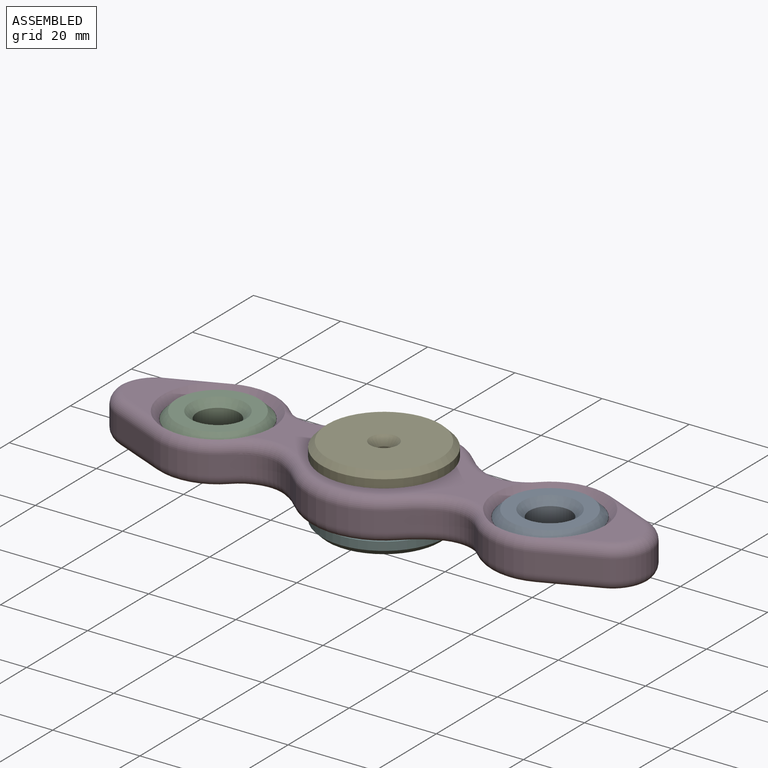
[diagram: assembled view]
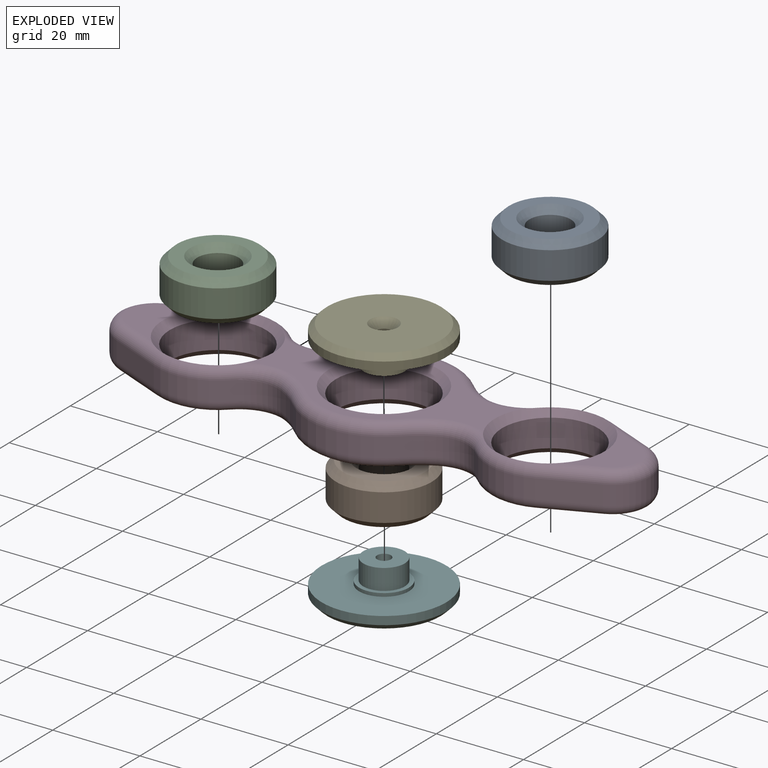
[diagram: exploded view]
GUIDED TOUR — MATED ASSEMBLY (Onshape document 589d855add79ff0fc411a54e, AutoMate assembly 589d855add79ff0fc411a54e_7f2bdc843beb71266bcebc4b_14e2ad150470167768cb55d5_default)

This assembly has 6 components, labeled P0..P5 below (a component is one placed occurrence of a part; the same part can appear more than once), held together by 5 mates. A mate is a constraint between two components; its type names the relative motion it leaves free:
  REVOLUTE — leaves rotation about the listed axis free (a hinge).
Axis/direction vectors are unit vectors and 'through' points are millimeter coordinates, both in the assembly's world frame.

MATES
  1. REVOLUTE "Revolute 2": P3 <-> P1, axis (0.000, 0.000, 1.000) through (0.00, 0.00, 9.53) mm
  2. REVOLUTE "Revolute 4": P4 <-> P1, axis (0.000, 0.000, -1.000) through (0.00, 0.00, 4.76) mm
  3. REVOLUTE "Revolute 1": P3 <-> P2, axis (0.000, 0.000, 1.000) through (-38.10, 0.00, 9.53) mm
  4. REVOLUTE "Revolute 3": P0 <-> P3, axis (0.000, 0.000, 1.000) through (38.10, 0.00, 9.53) mm
  5. REVOLUTE "Revolute 5": P5 <-> P1, axis (0.000, 0.000, 1.000) through (0.00, 0.00, 4.76) mm

ASSEMBLY ORDER
  1. P1 — the base component [order heuristic]
  2. P3 [order heuristic]
  3. P4 [order heuristic]
  4. P5 [order heuristic]
  5. P0 [order heuristic]
  6. P2 [order heuristic]
Order-tag legend:
  [order heuristic] — this assembly is geometrically interlocked (no collision-free removal order exists), so components are listed in mate-graph order; insertion feasibility is not verified.

Of the 6 components, 4 carry the full construction recipe — the FeatureScript program that regenerates the part's solid from scratch; the rest are supplied as boundary geometry only.
Each toured component is shown spotlighted twice — in the assembled view, then in the exploded view, where a leader line traces a displaced component back to its assembled socket (saturated green if recipe-attached, orange if geometry-only; every other component desaturated gray) — followed by its recipe or geometry summary and the mates that hold it.
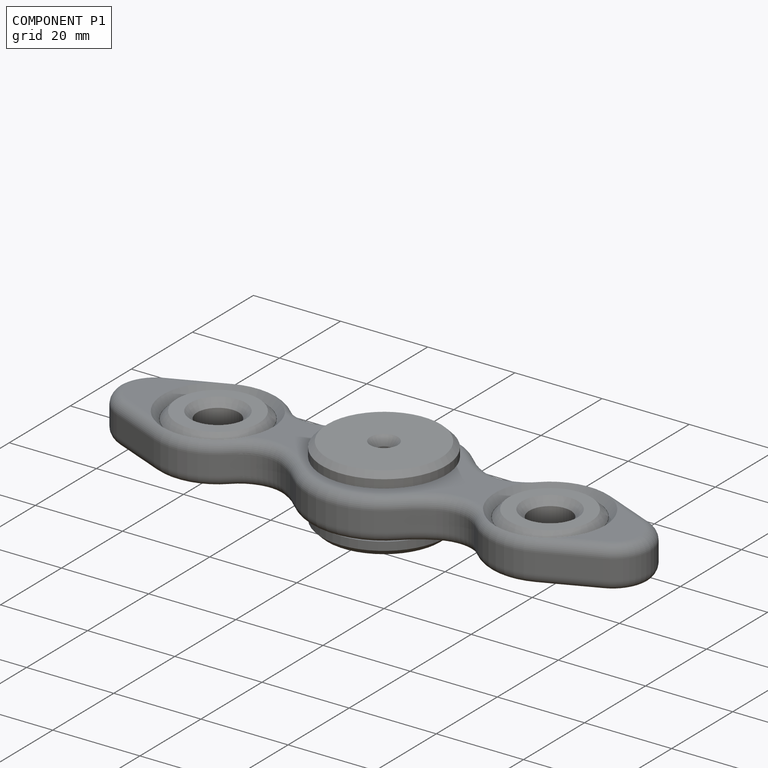
[diagram: component P1 — assembled]
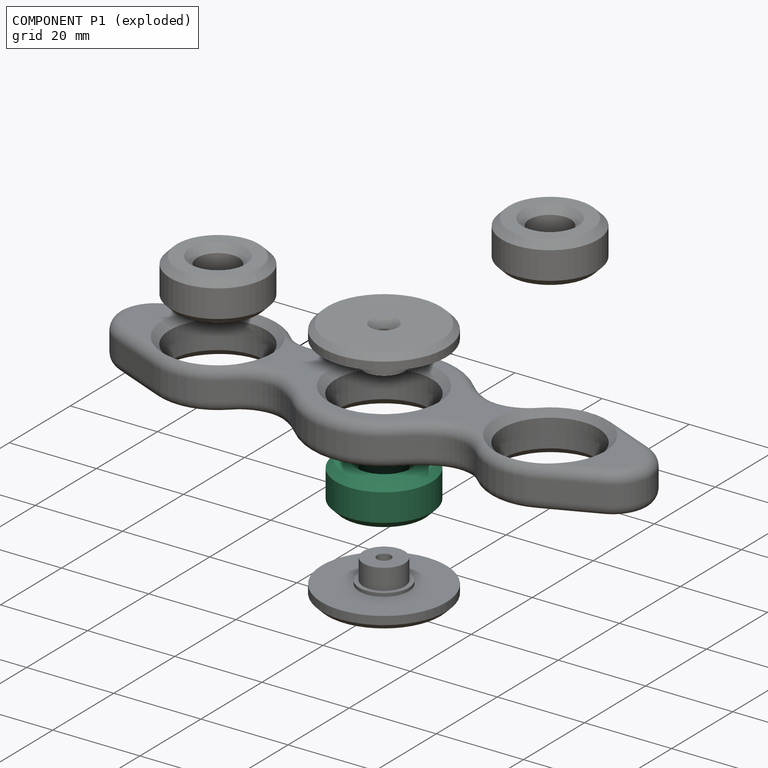
[diagram: component P1 — exploded]
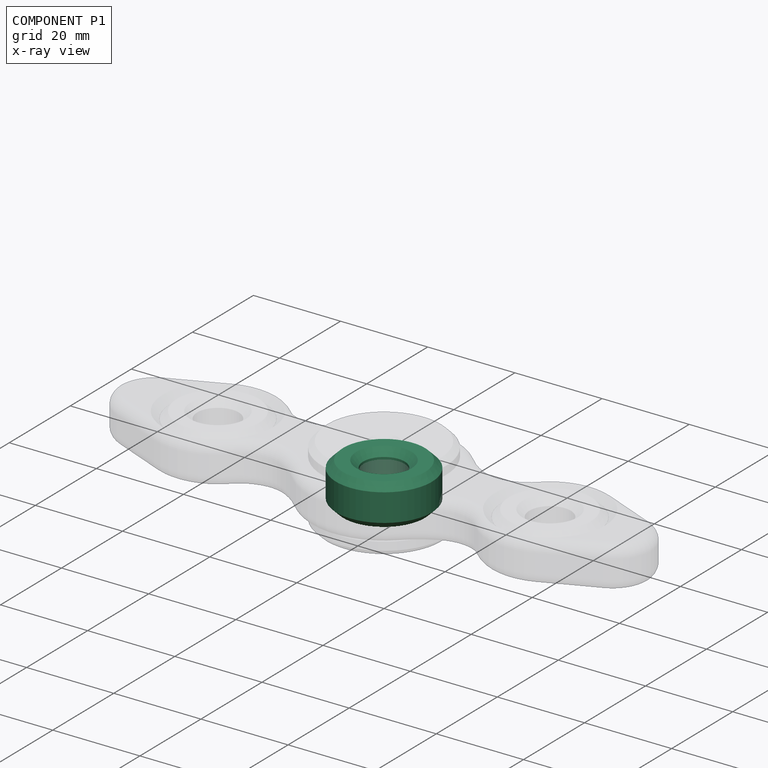
[diagram: component P1 — x-ray view]
COMPONENT P1 — same part as P0 (CADFS 00519273); its construction recipe is shown at P0.
Held by: REVOLUTE mate "Revolute 2" to P3; REVOLUTE mate "Revolute 4" to P4; REVOLUTE mate "Revolute 5" to P5.
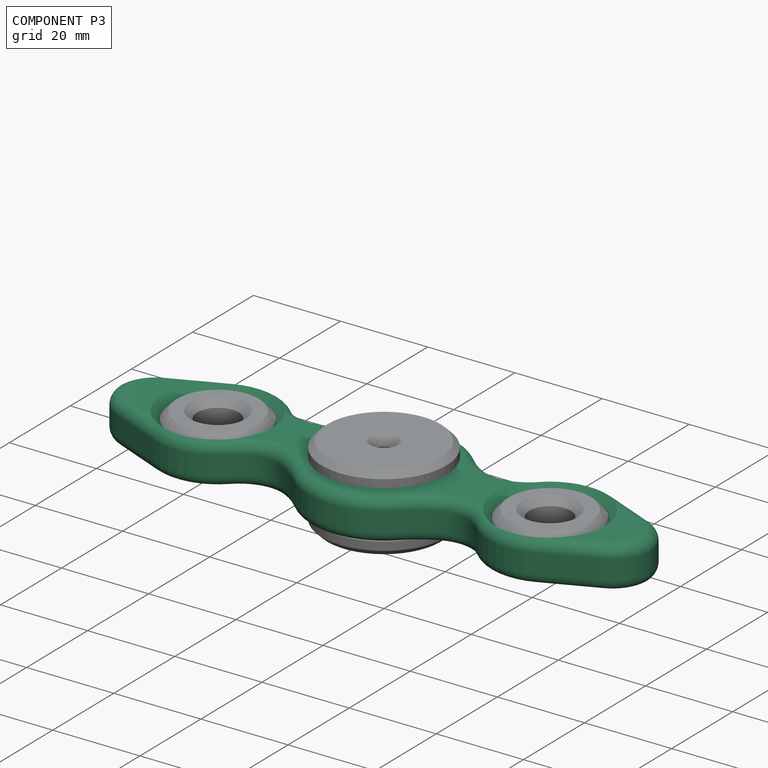
[diagram: component P3 — assembled]
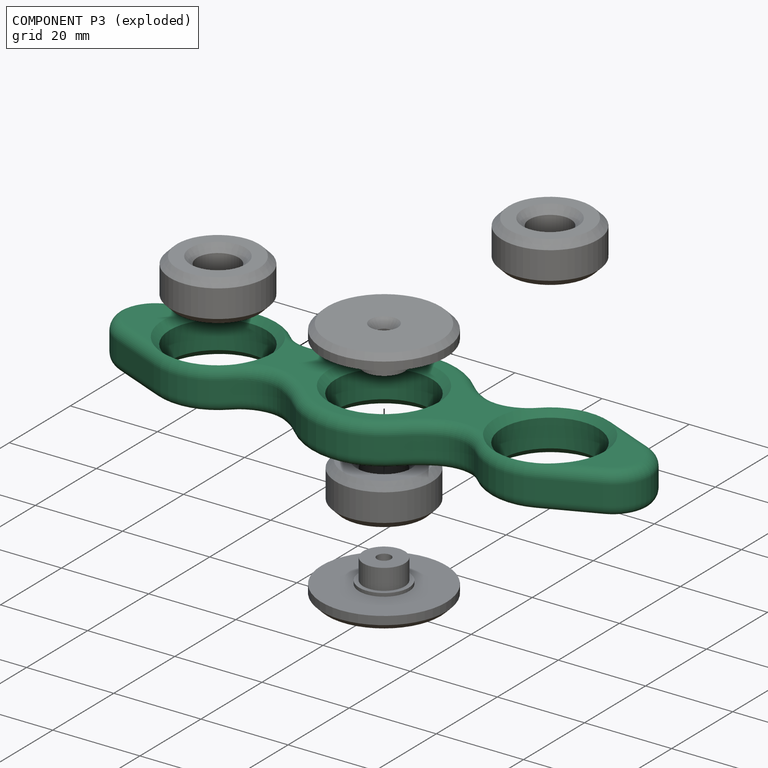
[diagram: component P3 — exploded]
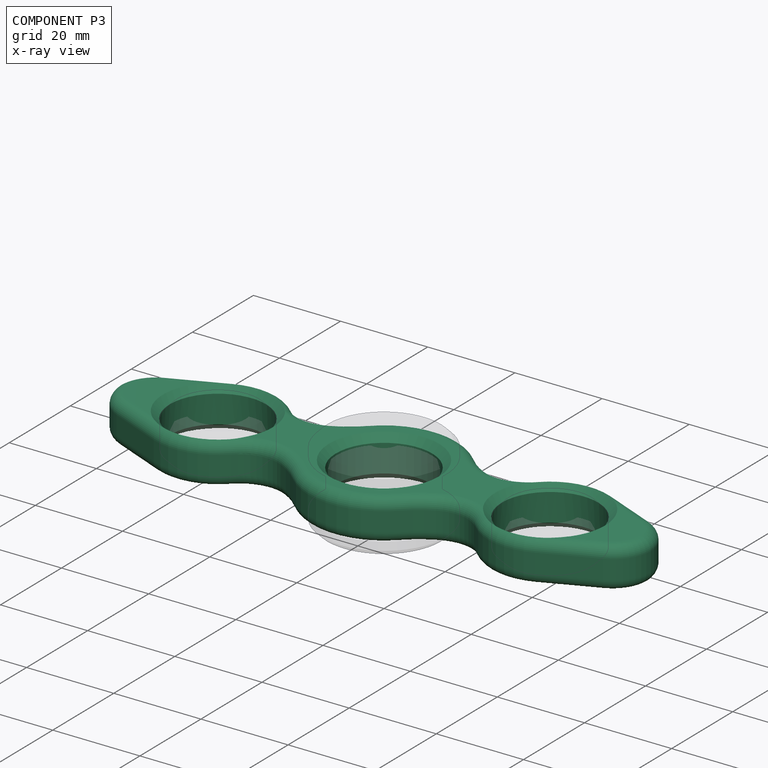
[diagram: component P3 — x-ray view]
COMPONENT P3 — recipe-attached (CADFS 00531265, mesh-verified: the recipe's output STEP matches this component's geometry to below the mesh-comparison resolution (tessellation chordal tolerance ~0.191 mm)).
Held by: REVOLUTE mate "Revolute 2" to P1; REVOLUTE mate "Revolute 1" to P2; REVOLUTE mate "Revolute 3" to P0.
Construction recipe (FeatureScript — the CAD program that rebuilds this solid; sketch coordinates are in the units given by the * unit suffixes, e.g. mm):

FeatureScript 1511;
import(path : "onshape/std/geometry.fs", version : "1511.0");
import(path : "onshape/std/common.fs", version : "1511.0");
const mm = millimeter;
const VERTEX = EntityType.VERTEX;
const EDGE = EntityType.EDGE;
const FACE = EntityType.FACE;
const BODY = EntityType.BODY;
function v(x, y){return vector(x, y);}
function OD(order){return orderDisambiguation(order);}
function OSD(set){return originalSetDisambiguation(set);}
function TD(topology){return topologyDisambiguation(topology);}
function TDD(query){return trueDependencyDisambiguation(query);}
function sQuery(a, b, c) {return sketchEntityQuery(a, b, c);}

annotation { "Feature Type Name" : "Feature", "Feature Type Description" : "" }
export const myFeature = defineFeature(function(context is Context, id is Id, definition is map)
    precondition{}
    {
        {
            var Q0;
            Q0=qCreatedBy(makeId("Top.planeOp"),FACE);
            var sketch = newSketch(context, id + "F0", { "sketchPlane" : qUnion([Q0])});
            skArc(sketch, "E0", {"start": v(0, 11.05) * mm, "mid": v(-7.81, 7.81) * mm, "end": v(-11.05, 0) * mm});
            skArc(sketch, "E1", {"start": v(-27.05, 0) * mm, "mid": v(-38.1, 11.05) * mm, "end": v(-49.15, 0) * mm});
            skArc(sketch, "E2", {"start": v(0, 17.4) * mm, "mid": v(-6.66, 16.07) * mm, "end": v(-12.3, 12.3) * mm});
            skArc(sketch, "E3", {"start": v(-28.04, 10.06) * mm, "mid": v(-35.39, 13.96) * mm, "end": v(-43.66, 13.1) * mm});
            skLineSegment(sketch, "E4", {"start": v(-43.66, 13.1) * mm, "end": v(-55.8, 7.94) * mm});
            skArc(sketch, "E5", {"start": v(-55.8, 7.94) * mm, "mid": v(-59.67, 4.77) * mm, "end": v(-61.2, 0) * mm});
            skPoint(sketch, "E6", {"position": v(0, 17.4) * mm});
            skArc(sketch, "E7", {"start": v(-17.9, 8.33) * mm, "mid": v(-14.94, 10.08) * mm, "end": v(-12.3, 12.3) * mm});
            skArc(sketch, "E8", {"start": v(-28.04, 10.06) * mm, "mid": v(-23.25, 7.58) * mm, "end": v(-17.9, 8.33) * mm});
            skLineSegment(sketch, "E9", {"start": v(0, 0) * mm, "end": v(-12.3, 12.3) * mm, "construction": true});
            skLineSegment(sketch, "E10", {"start": v(-38.1, 0) * mm, "end": v(-28.04, 10.06) * mm, "construction": true});
            skLineSegment(sketch, "E11", {"start": v(0, 17.4) * mm, "end": v(0, 0) * mm, "construction": true});
            skLineSegment(sketch, "E12", {"start": v(0, 0) * mm, "end": v(-61.2, 0) * mm, "construction": true});
            skPoint(sketch, "E13.center.orphan", {"position": v(38.1, 0) * mm});
            skPoint(sketch, "E14.end.orphan", {"position": v(-43.66, -13.1) * mm});
            skPoint(sketch, "E15.orphan", {"position": v(-55.8, -8.43) * mm});
            skArc(sketch, "E16.trimOffspring", {"start": v(-52.32, 0) * mm, "mid": v(-52.32, -0.12) * mm, "end": v(-52.32, -0.24) * mm});
            skArc(sketch, "E17.MirrorCS", {"start": v(-17.9, -8.33) * mm, "mid": v(-14.94, -10.08) * mm, "end": v(-12.3, -12.3) * mm});
            skArc(sketch, "E18.MirrorCS", {"start": v(-52.32, 0) * mm, "mid": v(-52.32, 0.12) * mm, "end": v(-52.32, 0.24) * mm});
            skLineSegment(sketch, "E19.MirrorCS", {"start": v(-43.66, -13.1) * mm, "end": v(-55.8, -7.94) * mm});
            skArc(sketch, "E20.MirrorCS", {"start": v(-55.8, -7.94) * mm, "mid": v(-59.67, -4.77) * mm, "end": v(-61.2, 0) * mm});
            skArc(sketch, "E21.MirrorCS", {"start": v(-28.04, -10.06) * mm, "mid": v(-23.25, -7.58) * mm, "end": v(-17.9, -8.33) * mm});
            skPoint(sketch, "E22.MirrorP", {"position": v(0, -17.4) * mm});
            skLineSegment(sketch, "E23.MirrorCS", {"start": v(0, 0) * mm, "end": v(-12.3, -12.3) * mm, "construction": true});
            skLineSegment(sketch, "E24.MirrorCS", {"start": v(0, -17.4) * mm, "end": v(0, 0) * mm, "construction": true});
            skArc(sketch, "E25.MirrorCS", {"start": v(-28.04, -10.06) * mm, "mid": v(-35.39, -13.96) * mm, "end": v(-43.66, -13.1) * mm});
            skArc(sketch, "E26.MirrorCS", {"start": v(-27.05, 0) * mm, "mid": v(-38.1, -11.05) * mm, "end": v(-49.15, 0) * mm});
            skArc(sketch, "E27.MirrorCS", {"start": v(0, -11.05) * mm, "mid": v(-7.81, -7.81) * mm, "end": v(-11.05, 0) * mm});
            skArc(sketch, "E28.MirrorCS", {"start": v(0, -17.4) * mm, "mid": v(-6.66, -16.07) * mm, "end": v(-12.3, -12.3) * mm});
            skLineSegment(sketch, "E29.MirrorCS", {"start": v(-38.1, 0) * mm, "end": v(-28.04, -10.06) * mm, "construction": true});
            skPoint(sketch, "E30.MirrorP", {"position": v(-55.8, 8.43) * mm});
            skArc(sketch, "E31.MirrorCS", {"start": v(52.32, 0) * mm, "mid": v(52.32, -0.12) * mm, "end": v(52.32, -0.24) * mm});
            skArc(sketch, "E32.MirrorCS", {"start": v(52.32, 0) * mm, "mid": v(52.32, 0.12) * mm, "end": v(52.32, 0.24) * mm});
            skArc(sketch, "E33.MirrorCS", {"start": v(17.9, 8.33) * mm, "mid": v(14.94, 10.08) * mm, "end": v(12.3, 12.3) * mm});
            skArc(sketch, "E34.MirrorCS", {"start": v(17.9, -8.33) * mm, "mid": v(14.94, -10.08) * mm, "end": v(12.3, -12.3) * mm});
            skPoint(sketch, "E35.MirrorP", {"position": v(55.8, 8.43) * mm});
            skArc(sketch, "E36.MirrorCS", {"start": v(55.8, -7.94) * mm, "mid": v(59.67, -4.77) * mm, "end": v(61.2, 0) * mm});
            skLineSegment(sketch, "E37.MirrorCS", {"start": v(0, 0) * mm, "end": v(12.3, -12.3) * mm, "construction": true});
            skPoint(sketch, "E38.MirrorP", {"position": v(43.66, -13.1) * mm});
            skArc(sketch, "E39.MirrorCS", {"start": v(28.04, -10.06) * mm, "mid": v(35.39, -13.96) * mm, "end": v(43.66, -13.1) * mm});
            skArc(sketch, "E40.MirrorCS", {"start": v(0, -11.05) * mm, "mid": v(7.81, -7.81) * mm, "end": v(11.05, 0) * mm});
            skArc(sketch, "E41.MirrorCS", {"start": v(0, -17.4) * mm, "mid": v(6.66, -16.07) * mm, "end": v(12.3, -12.3) * mm});
            skLineSegment(sketch, "E42.MirrorCS", {"start": v(0, 0) * mm, "end": v(61.2, 0) * mm, "construction": true});
            skLineSegment(sketch, "E43.MirrorCS", {"start": v(38.1, 0) * mm, "end": v(28.04, 10.06) * mm, "construction": true});
            skLineSegment(sketch, "E44.MirrorCS", {"start": v(0, 0) * mm, "end": v(12.3, 12.3) * mm, "construction": true});
            skArc(sketch, "E45.MirrorCS", {"start": v(28.04, 10.06) * mm, "mid": v(23.25, 7.58) * mm, "end": v(17.9, 8.33) * mm});
            skArc(sketch, "E46.MirrorCS", {"start": v(55.8, 7.94) * mm, "mid": v(59.67, 4.77) * mm, "end": v(61.2, 0) * mm});
            skLineSegment(sketch, "E47.MirrorCS", {"start": v(43.66, 13.1) * mm, "end": v(55.8, 7.94) * mm});
            skArc(sketch, "E48.MirrorCS", {"start": v(28.04, 10.06) * mm, "mid": v(35.39, 13.96) * mm, "end": v(43.66, 13.1) * mm});
            skArc(sketch, "E49.MirrorCS", {"start": v(0, 17.4) * mm, "mid": v(6.66, 16.07) * mm, "end": v(12.3, 12.3) * mm});
            skLineSegment(sketch, "E50.MirrorCS", {"start": v(38.1, 0) * mm, "end": v(28.04, -10.06) * mm, "construction": true});
            skArc(sketch, "E51.MirrorCS", {"start": v(27.05, 0) * mm, "mid": v(38.1, 11.05) * mm, "end": v(49.15, 0) * mm});
            skPoint(sketch, "E52.MirrorP", {"position": v(55.8, -8.43) * mm});
            skArc(sketch, "E53.MirrorCS", {"start": v(27.05, 0) * mm, "mid": v(38.1, -11.05) * mm, "end": v(49.15, 0) * mm});
            skArc(sketch, "E54.MirrorCS", {"start": v(28.04, -10.06) * mm, "mid": v(23.25, -7.58) * mm, "end": v(17.9, -8.33) * mm});
            skArc(sketch, "E55.MirrorCS", {"start": v(0, 11.05) * mm, "mid": v(7.81, 7.81) * mm, "end": v(11.05, 0) * mm});
            skLineSegment(sketch, "E56.MirrorCS", {"start": v(43.66, -13.1) * mm, "end": v(55.8, -7.94) * mm});
            skSolve(sketch);
        }
        {
            var Q0;
            Q0=makeQuery(id+"F0.imprint","IMPRINT",FACE,{"disambiguationData":[TD([[makeQuery(id+"F0.imprint","IMPRINT",EDGE,{"derivedFrom":sQuery(id+"F0.wireOp",EDGE,"E0")}),-1.0]])]});
            extrude(context, id + "F1", {"entities" : qUnion([Q0]), "depth" : 9.52 * mm});
        }
        {
            var Q0;
            Q0=makeQuery(id+"F1.opExtrude","CAP_EDGE",EDGE,{"disambiguationData":[OSD([sQuery(id+"F0.wireOp",EDGE,"E28.MirrorCS"),sQuery(id+"F0.wireOp",EDGE,"E41.MirrorCS")])],"isStart":false});
            var Q1;
            Q1=makeQuery(id+"F1.opExtrude","CAP_EDGE",EDGE,{"disambiguationData":[OSD([sQuery(id+"F0.wireOp",EDGE,"E17.MirrorCS")])],"isStart":false});
            var Q2;
            Q2=makeQuery(id+"F1.opExtrude","CAP_EDGE",EDGE,{"disambiguationData":[OSD([sQuery(id+"F0.wireOp",EDGE,"E21.MirrorCS")])],"isStart":false});
            var Q3;
            Q3=makeQuery(id+"F1.opExtrude","CAP_EDGE",EDGE,{"disambiguationData":[OSD([sQuery(id+"F0.wireOp",EDGE,"E25.MirrorCS")])],"isStart":false});
            var Q4;
            Q4=makeQuery(id+"F1.opExtrude","CAP_EDGE",EDGE,{"disambiguationData":[OSD([sQuery(id+"F0.wireOp",EDGE,"E19.MirrorCS")])],"isStart":false});
            var Q5;
            Q5=makeQuery(id+"F1.opExtrude","CAP_EDGE",EDGE,{"disambiguationData":[OSD([sQuery(id+"F0.wireOp",EDGE,"E20.MirrorCS")])],"isStart":false});
            var Q6;
            Q6=makeQuery(id+"F1.opExtrude","CAP_EDGE",EDGE,{"disambiguationData":[OSD([sQuery(id+"F0.wireOp",EDGE,"E5")])],"isStart":false});
            var Q7;
            Q7=makeQuery(id+"F1.opExtrude","CAP_EDGE",EDGE,{"disambiguationData":[OSD([sQuery(id+"F0.wireOp",EDGE,"E4")])],"isStart":false});
            var Q8;
            Q8=makeQuery(id+"F1.opExtrude","CAP_EDGE",EDGE,{"disambiguationData":[OSD([sQuery(id+"F0.wireOp",EDGE,"E28.MirrorCS"),sQuery(id+"F0.wireOp",EDGE,"E41.MirrorCS")])],"isStart":true});
            var Q9;
            Q9=makeQuery(id+"F1.opExtrude","CAP_EDGE",EDGE,{"disambiguationData":[OSD([sQuery(id+"F0.wireOp",EDGE,"E39.MirrorCS")])],"isStart":true});
            var Q10;
            Q10=makeQuery(id+"F1.opExtrude","CAP_EDGE",EDGE,{"disambiguationData":[OSD([sQuery(id+"F0.wireOp",EDGE,"E54.MirrorCS")])],"isStart":true});
            var Q11;
            Q11=makeQuery(id+"F1.opExtrude","CAP_EDGE",EDGE,{"disambiguationData":[OSD([sQuery(id+"F0.wireOp",EDGE,"E34.MirrorCS")])],"isStart":true});
            var Q12;
            Q12=makeQuery(id+"F1.opExtrude","CAP_EDGE",EDGE,{"disambiguationData":[OSD([sQuery(id+"F0.wireOp",EDGE,"E56.MirrorCS")])],"isStart":true});
            var Q13;
            Q13=makeQuery(id+"F1.opExtrude","CAP_EDGE",EDGE,{"disambiguationData":[OSD([sQuery(id+"F0.wireOp",EDGE,"E36.MirrorCS")])],"isStart":true});
            var Q14;
            Q14=makeQuery(id+"F1.opExtrude","CAP_EDGE",EDGE,{"disambiguationData":[OSD([sQuery(id+"F0.wireOp",EDGE,"E46.MirrorCS")])],"isStart":true});
            fillet(context, id + "F2", {"entities" : qUnion([Q0, Q1, Q2, Q3, Q4, Q5, Q6, Q7, Q8, Q9, Q10, Q11, Q12, Q13, Q14]), "radius" : 2.54 * mm, "tangentPropagation" : true, "allowEdgeOverflow" : false});
        }
        {
            var Q0;
            Q0=makeQuery(id+"F1.opExtrude","CAP_EDGE",EDGE,{"disambiguationData":[OSD([sQuery(id+"F0.wireOp",EDGE,"E0"),sQuery(id+"F0.wireOp",EDGE,"E27.MirrorCS"),sQuery(id+"F0.wireOp",EDGE,"E40.MirrorCS"),sQuery(id+"F0.wireOp",EDGE,"E55.MirrorCS")])],"isStart":false});
            var Q1;
            Q1=makeQuery(id+"F1.opExtrude","CAP_EDGE",EDGE,{"disambiguationData":[OSD([sQuery(id+"F0.wireOp",EDGE,"E0"),sQuery(id+"F0.wireOp",EDGE,"E27.MirrorCS"),sQuery(id+"F0.wireOp",EDGE,"E40.MirrorCS"),sQuery(id+"F0.wireOp",EDGE,"E55.MirrorCS")])],"isStart":true});
            var Q2;
            Q2=makeQuery(id+"F1.opExtrude","CAP_EDGE",EDGE,{"disambiguationData":[OSD([sQuery(id+"F0.wireOp",EDGE,"E1"),sQuery(id+"F0.wireOp",EDGE,"E26.MirrorCS")])],"isStart":false});
            var Q3;
            Q3=makeQuery(id+"F1.opExtrude","CAP_EDGE",EDGE,{"disambiguationData":[OSD([sQuery(id+"F0.wireOp",EDGE,"E1"),sQuery(id+"F0.wireOp",EDGE,"E26.MirrorCS")])],"isStart":true});
            var Q4;
            Q4=makeQuery(id+"F1.opExtrude","CAP_EDGE",EDGE,{"disambiguationData":[OSD([sQuery(id+"F0.wireOp",EDGE,"E51.MirrorCS"),sQuery(id+"F0.wireOp",EDGE,"E53.MirrorCS")])],"isStart":true});
            var Q5;
            Q5=makeQuery(id+"F1.opExtrude","CAP_EDGE",EDGE,{"disambiguationData":[OSD([sQuery(id+"F0.wireOp",EDGE,"E51.MirrorCS"),sQuery(id+"F0.wireOp",EDGE,"E53.MirrorCS")])],"isStart":false});
            chamfer(context, id + "F3", {"entities" : qUnion([Q0, Q1, Q2, Q3, Q4, Q5]), "width" : 1.59 * mm, "tangentPropagation" : true});
        }
    });
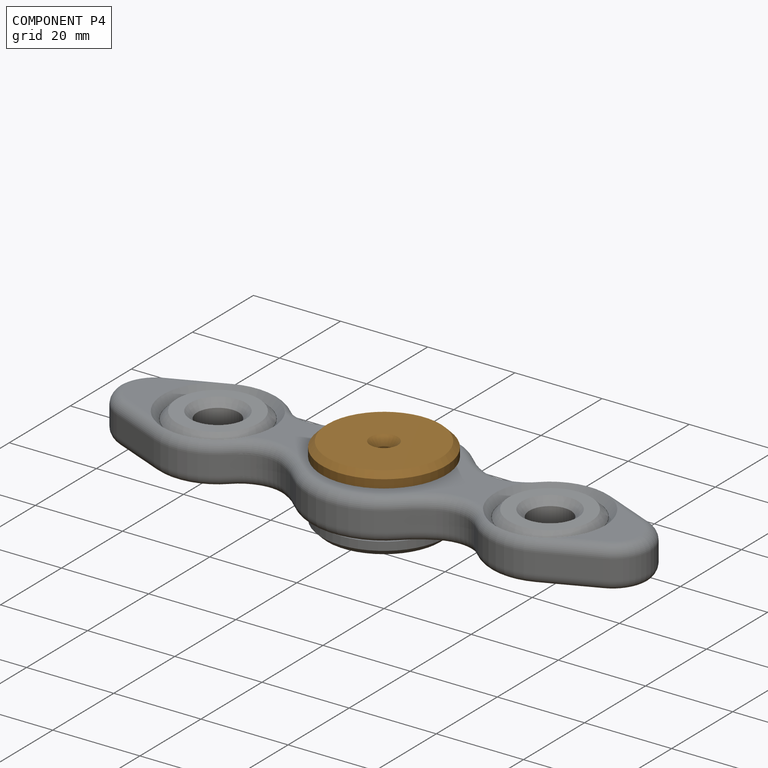
[diagram: component P4 — assembled]
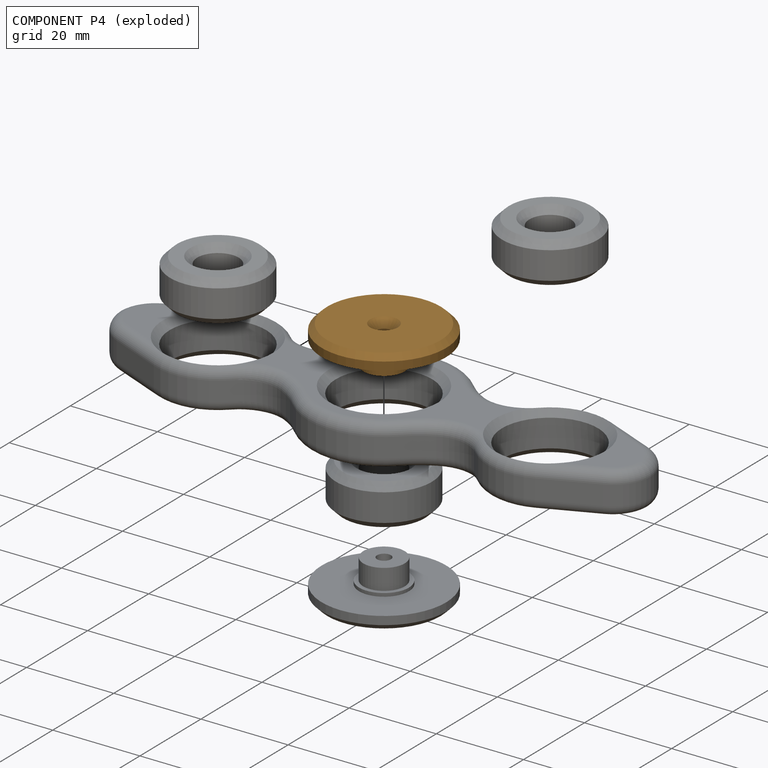
[diagram: component P4 — exploded]
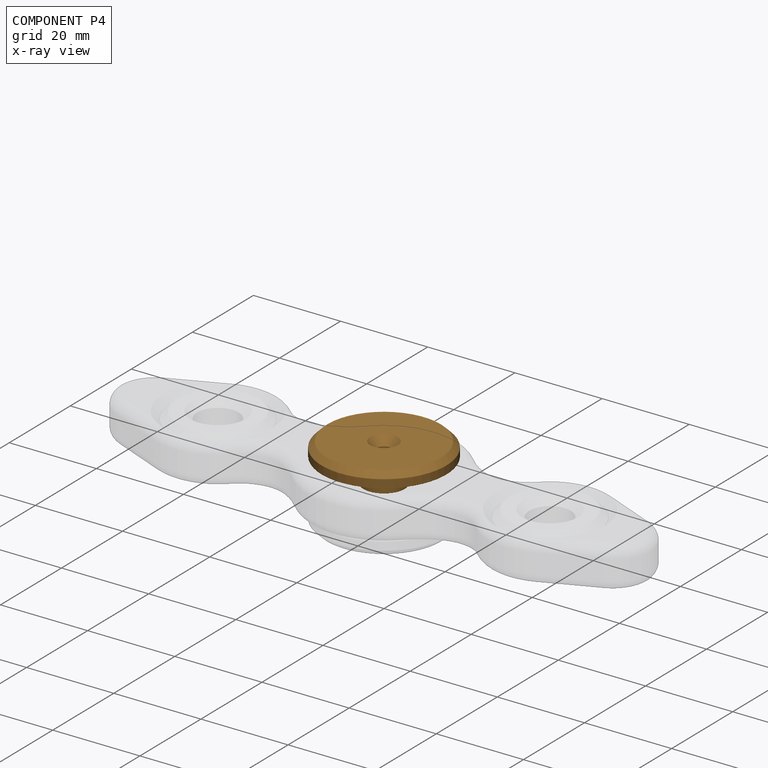
[diagram: component P4 — x-ray view]
COMPONENT P4 — geometry summary (no construction recipe available for this part):
  bounding box: 28.6 x 28.6 x 8.7 mm
  B-rep topology: 1 solid, 10 faces, 34 edges
  volume: 2295 mm^3 (32% of its bounding box)
  symmetry: revolution-symmetric about the z axis through its bounding-box center; mirror-symmetric across its x mid-plane, y mid-plane
Held by: REVOLUTE mate "Revolute 4" to P1.
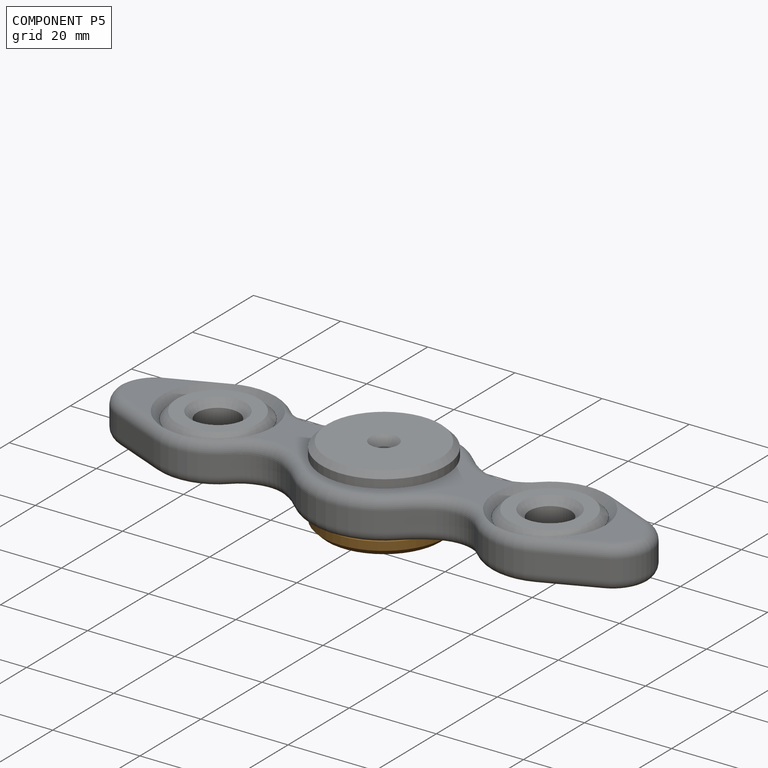
[diagram: component P5 — assembled]
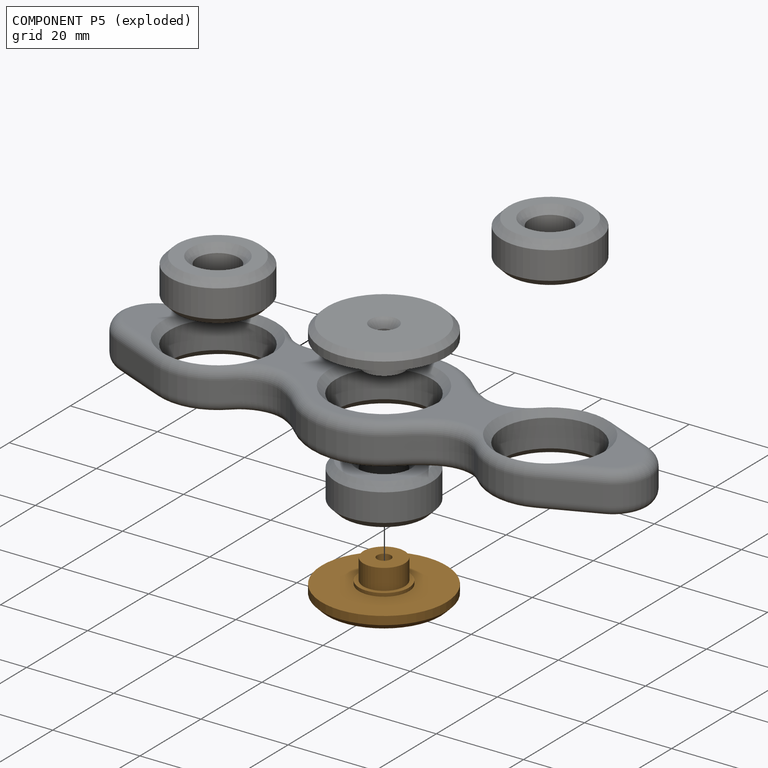
[diagram: component P5 — exploded]
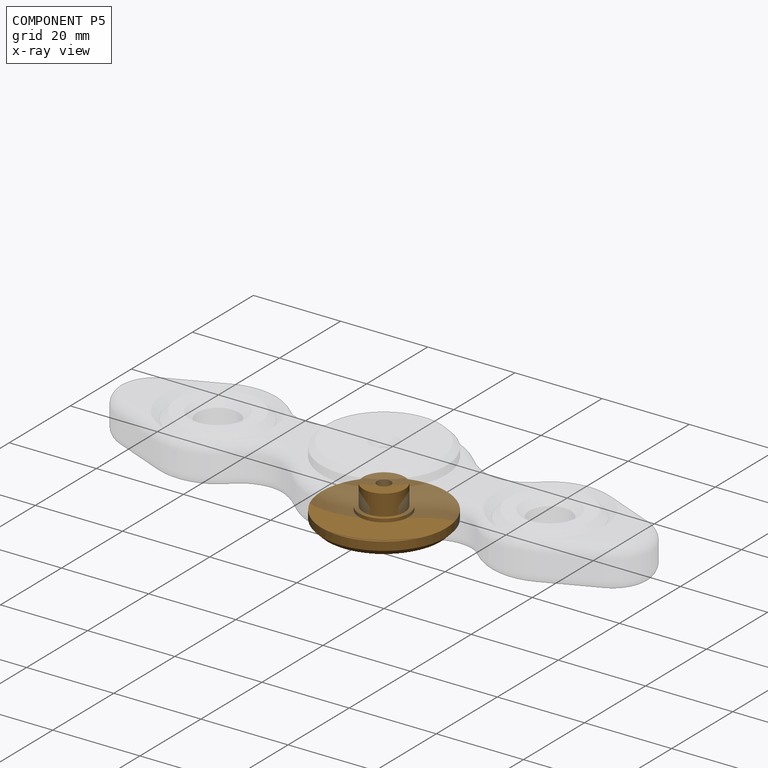
[diagram: component P5 — x-ray view]
COMPONENT P5 — geometry summary (no construction recipe available for this part):
  bounding box: 28.6 x 28.6 x 8.7 mm
  B-rep topology: 1 solid, 16 faces, 64 edges
  volume: 2272 mm^3 (32% of its bounding box)
  symmetry: 6-fold rotationally symmetric about the z axis; mirror-symmetric across its x mid-plane, y mid-plane
Held by: REVOLUTE mate "Revolute 5" to P1.
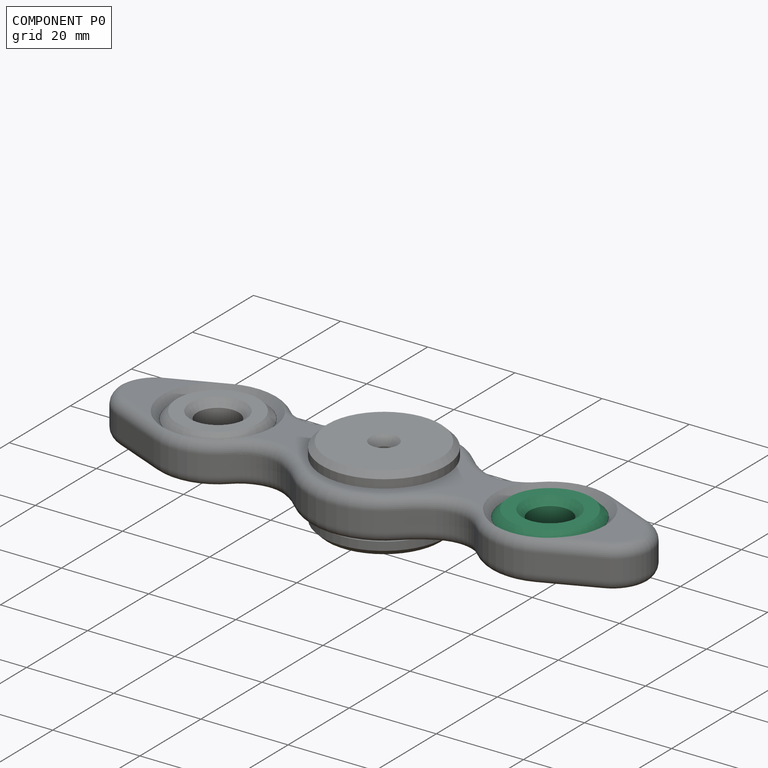
[diagram: component P0 — assembled]
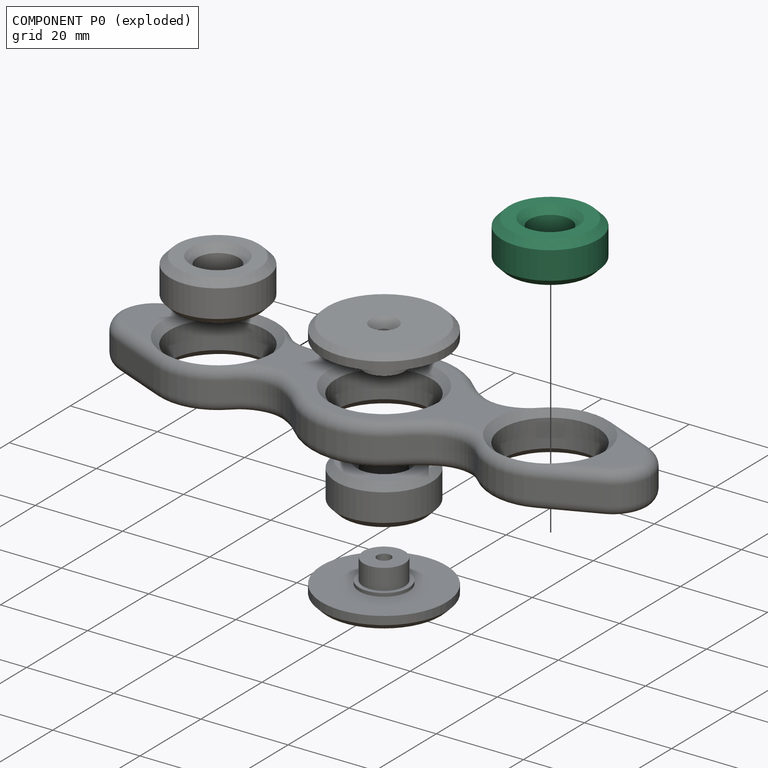
[diagram: component P0 — exploded]
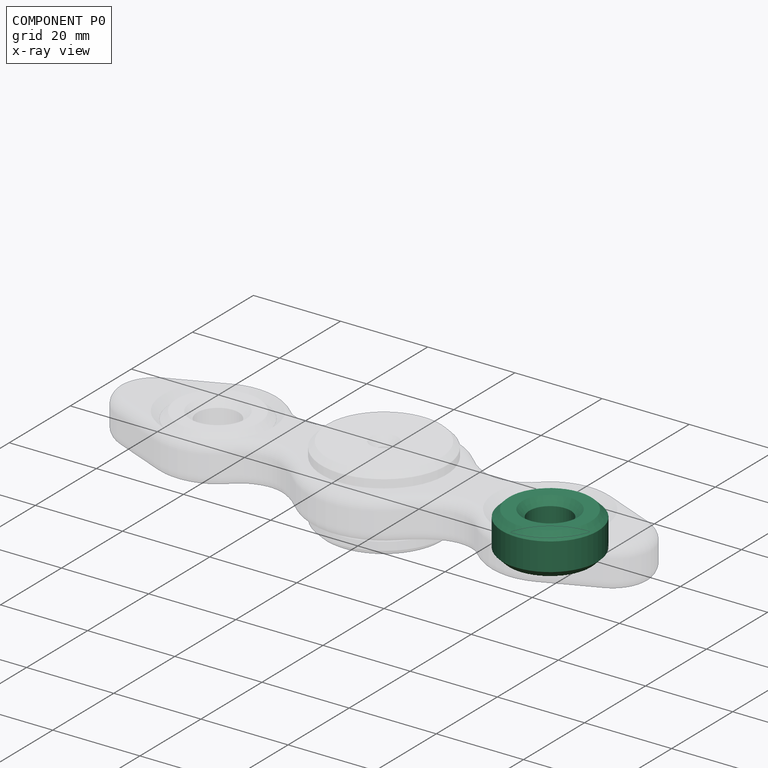
[diagram: component P0 — x-ray view]
COMPONENT P0 — recipe-attached (CADFS 00519273, mesh-verified: the recipe's output STEP matches this component's geometry to below the mesh-comparison resolution (tessellation chordal tolerance ~0.0487 mm)).
Held by: REVOLUTE mate "Revolute 3" to P3.
Construction recipe (FeatureScript — the CAD program that rebuilds this solid; sketch coordinates are in the units given by the * unit suffixes, e.g. mm):

FeatureScript 1511;
import(path : "onshape/std/geometry.fs", version : "1511.0");
import(path : "onshape/std/common.fs", version : "1511.0");
const mm = millimeter;
const VERTEX = EntityType.VERTEX;
const EDGE = EntityType.EDGE;
const FACE = EntityType.FACE;
const BODY = EntityType.BODY;
function v(x, y){return vector(x, y);}
function OD(order){return orderDisambiguation(order);}
function OSD(set){return originalSetDisambiguation(set);}
function TD(topology){return topologyDisambiguation(topology);}
function TDD(query){return trueDependencyDisambiguation(query);}
function sQuery(a, b, c) {return sketchEntityQuery(a, b, c);}

annotation { "Feature Type Name" : "Feature", "Feature Type Description" : "" }
export const myFeature = defineFeature(function(context is Context, id is Id, definition is map)
    precondition{}
    {
        {
            var Q0;
            Q0=qCreatedBy(makeId("Top.planeOp"),FACE);
            var sketch = newSketch(context, id + "F0", { "sketchPlane" : qUnion([Q0])});
            skCircle(sketch, "E0", {"center": v(0, 0) * mm, "radius": 4.76 * mm});
            skCircle(sketch, "E1", {"center": v(0, 0) * mm, "radius": 10.99 * mm});
            skSolve(sketch);
        }
        {
            var Q0;
            Q0=makeQuery(id+"F0.imprint","IMPRINT",FACE,{"disambiguationData":[TD([[makeQuery(id+"F0.imprint","IMPRINT",EDGE,{"derivedFrom":sQuery(id+"F0.wireOp",EDGE,"E0")}),-1.0]])]});
            extrude(context, id + "F1", {"entities" : qUnion([Q0]), "depth" : 9.52 * mm});
        }
        {
            var Q0;
            Q0=makeQuery(id+"F1.opExtrude","CAP_EDGE",EDGE,{"disambiguationData":[OSD([sQuery(id+"F0.wireOp",EDGE,"E1")])],"isStart":true});
            var Q1;
            Q1=makeQuery(id+"F1.opExtrude","CAP_EDGE",EDGE,{"disambiguationData":[OSD([sQuery(id+"F0.wireOp",EDGE,"E1")])],"isStart":false});
            var Q2;
            Q2=makeQuery(id+"F1.opExtrude","CAP_EDGE",EDGE,{"disambiguationData":[OSD([sQuery(id+"F0.wireOp",EDGE,"E0")])],"isStart":false});
            var Q3;
            Q3=makeQuery(id+"F1.opExtrude","CAP_EDGE",EDGE,{"disambiguationData":[OSD([sQuery(id+"F0.wireOp",EDGE,"E0")])],"isStart":true});
            chamfer(context, id + "F2", {"entities" : qUnion([Q0, Q1, Q2, Q3]), "width" : 1.59 * mm, "tangentPropagation" : true});
        }
    });
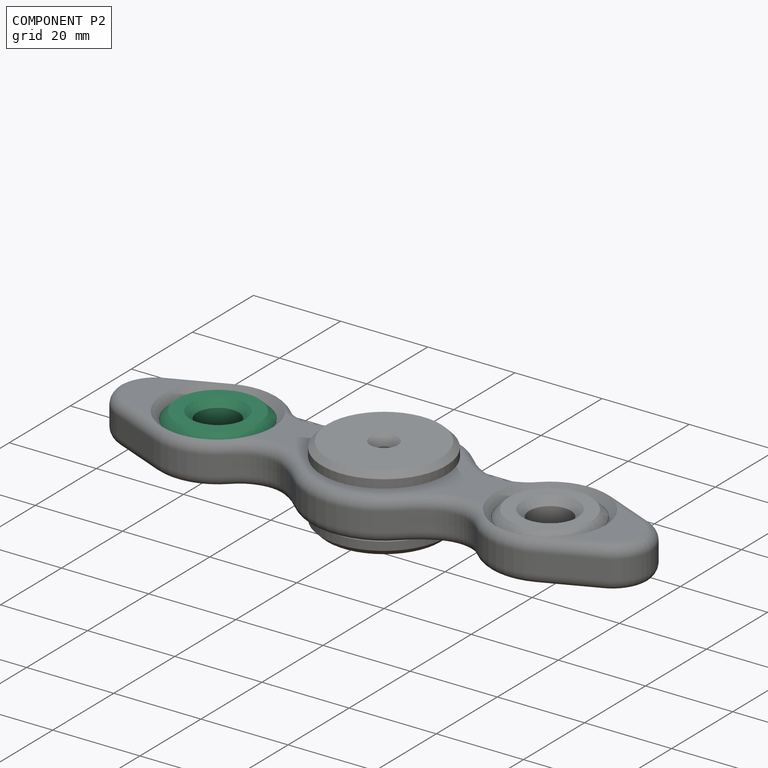
[diagram: component P2 — assembled]
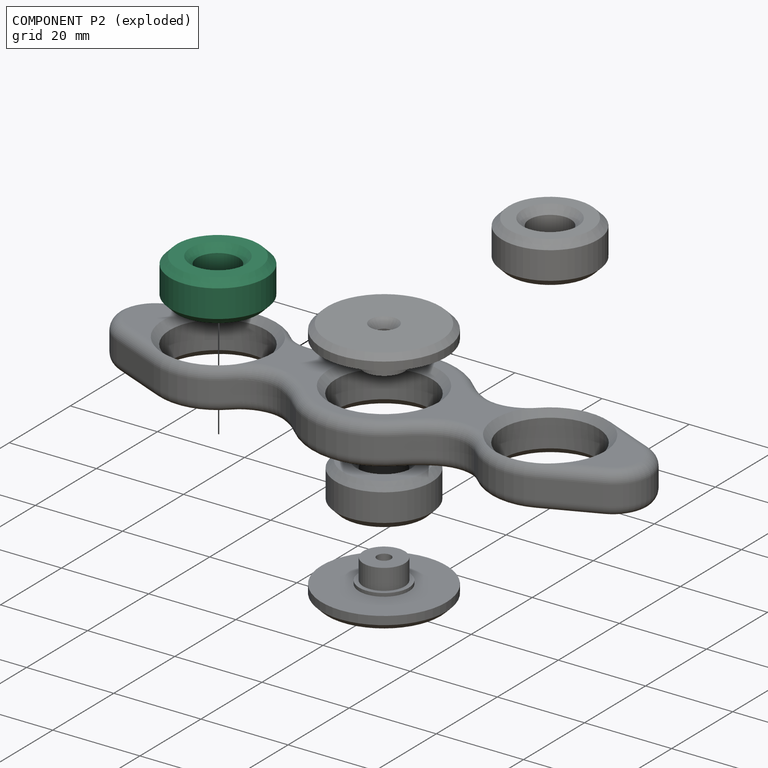
[diagram: component P2 — exploded]
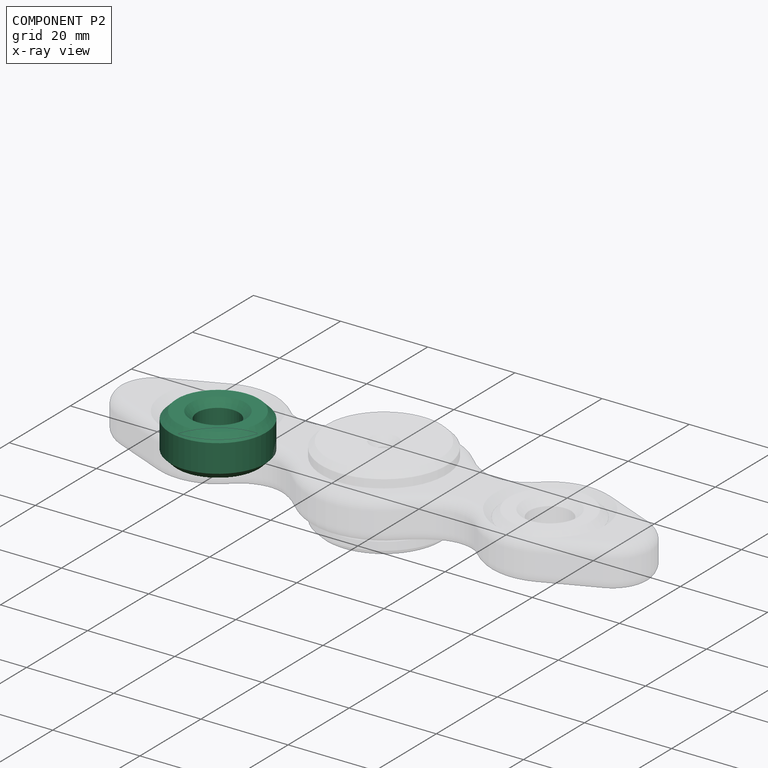
[diagram: component P2 — x-ray view]
COMPONENT P2 — same part as P0 (CADFS 00519273); its construction recipe is shown at P0.
Held by: REVOLUTE mate "Revolute 1" to P3.
PROVENANCE & LICENSES
Assembly (occurrences, transforms, mates, per-part STEP geometry): AutoMate dataset, Zenodo record 7776208, CC0.
Construction recipes: CADFS (HuggingFace VladPyatov/CADFS, CC-BY-4.0, layered over the ABC dataset), FeatureScript reconstruction programs keyed by ABC model id.
Join: ABC meta listings map ABC model id -> Onshape documentId; within a shared document, parts are matched by geometric signature (bounding-box dims + volume at 0.1% relative tolerance, exact B-rep face/solid counts).
Verification: 4 of this assembly's 6 components carry a recipe attachment, and every attachment is mesh-verified: the CADFS STEP and the AutoMate member STEP were compared as meshes in their shared local frame (symmetric sampled-point-to-mesh distance); worst across the 4 attachments: below the mesh-comparison resolution (tessellation chordal tolerance ~0.191 mm) on a 128 mm part.
Renders: orthographic iso camera (az 35 / el 25); the floor grid conveys scale (grid pitch printed in each image; no ruler). In the exploded view each component is displaced by its stored offset vector: the offsets alone carry the explosion direction (mate normal/axis signs are not orientation cues and do not encode it), and separation distances are assigned per mate-chain, not proportionally to assembly-order depth.
